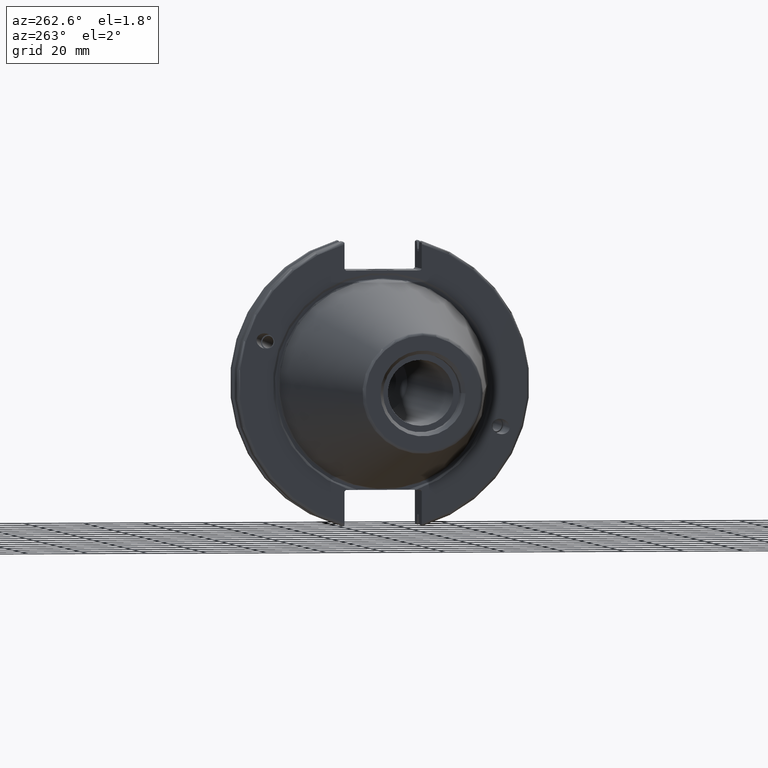
[diagram: clean part render]
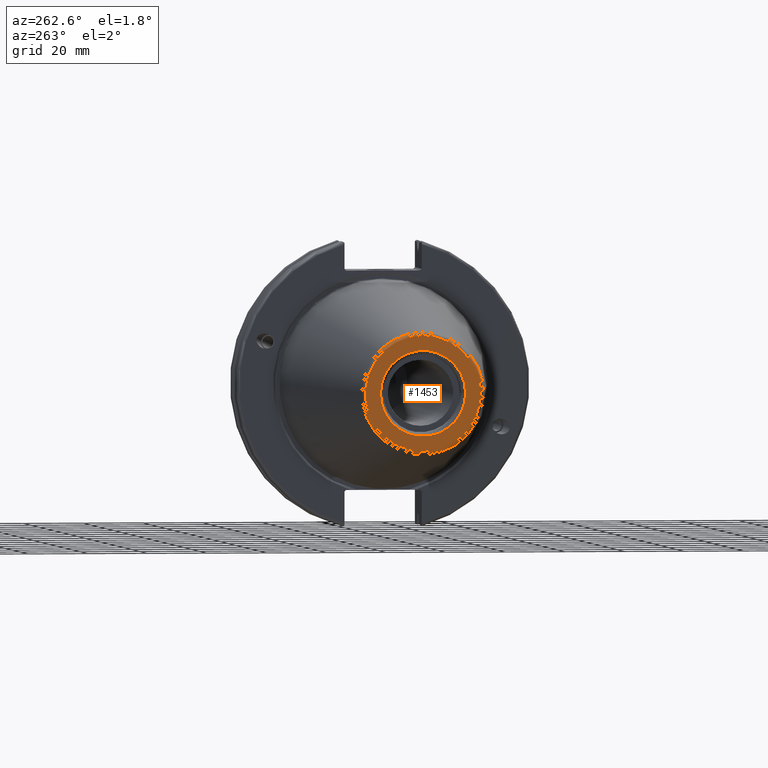
[diagram: same view with one face highlighted and labeled with its STEP entity id]
A machine part, auxiliary view. The second image highlights one B-rep face of the part: STEP entity #1453.
In plain terms, the highlighted planar face has unit normal (-1, 0, 0).
Its self-contained STEP definition (entity closure, byte-faithful):
#69=FACE_BOUND('',#297,.T.);
#93=PLANE('',#1623);
#200=FACE_OUTER_BOUND('',#296,.T.);
#296=EDGE_LOOP('',(#1231));
#297=EDGE_LOOP('',(#1232));
#574=CIRCLE('',#1622,19.2435889303637);
#575=CIRCLE('',#1624,14.2875);
#719=VERTEX_POINT('',#2681);
#720=VERTEX_POINT('',#2685);
#908=EDGE_CURVE('',#719,#719,#574,.T.);
#909=EDGE_CURVE('',#720,#720,#575,.T.);
#1231=ORIENTED_EDGE('',*,*,#908,.F.);
#1232=ORIENTED_EDGE('',*,*,#909,.T.);
#1453=ADVANCED_FACE('',(#200,#69),#93,.T.);
#1622=AXIS2_PLACEMENT_3D('',#2683,#1972,#1973);
#1623=AXIS2_PLACEMENT_3D('',#2684,#1974,#1975);
#1624=AXIS2_PLACEMENT_3D('',#2686,#1976,#1977);
#1972=DIRECTION('center_axis',(1.,0.,0.));
#1973=DIRECTION('ref_axis',(0.,-1.,1.83697019872103E-16));
#1974=DIRECTION('center_axis',(-1.,0.,0.));
#1975=DIRECTION('ref_axis',(0.,0.,1.));
#1976=DIRECTION('center_axis',(1.,0.,0.));
#1977=DIRECTION('ref_axis',(0.,0.,-1.));
#2681=CARTESIAN_POINT('',(-101.6,-2.35665995876774E-15,19.2435889303637));
#2683=CARTESIAN_POINT('Origin',(-101.6,0.,0.));
#2684=CARTESIAN_POINT('Origin',(-101.6,20.1083333333333,0.));
#2685=CARTESIAN_POINT('',(-101.6,-14.2875,-1.74971411428178E-15));
#2686=CARTESIAN_POINT('Origin',(-101.6,0.,0.));